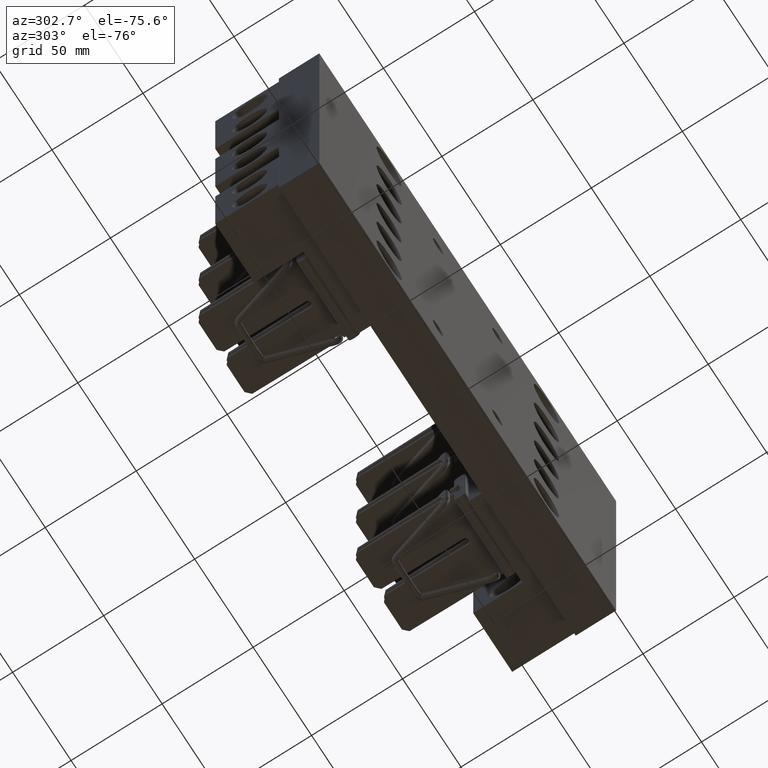
[diagram: clean part render]
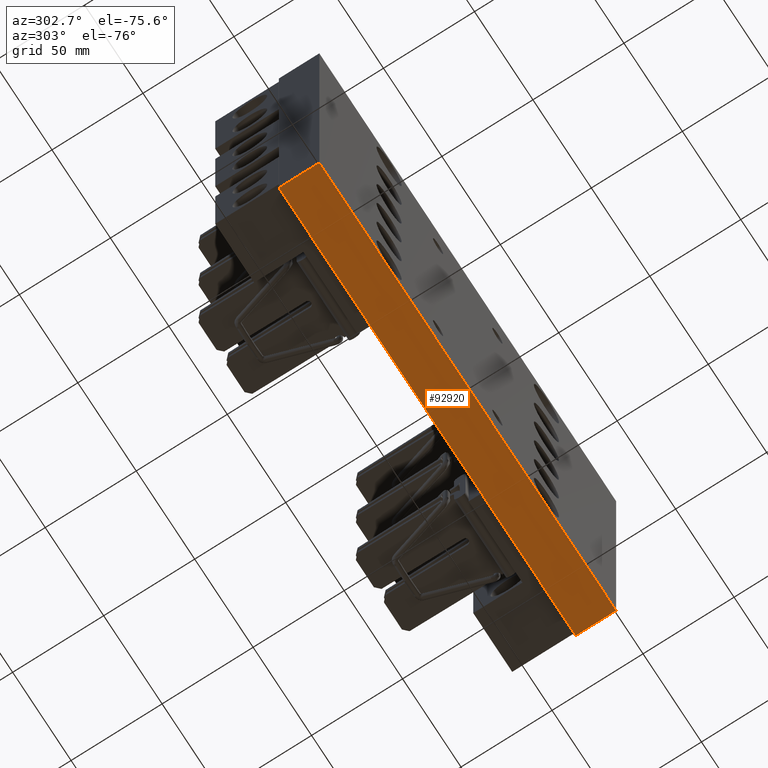
[diagram: same view with one face highlighted and labeled with its STEP entity id]
A machine part, auxiliary view. The second image highlights one B-rep face of the part: STEP entity #92920.
In plain terms, the highlighted planar face has unit normal (0, 0, 1).
Its self-contained STEP definition (entity closure, byte-faithful):
#7369 = EDGE_CURVE ( 'NONE', #13911, #13732, #9282, .T. ) ;
#7371 = EDGE_CURVE ( 'NONE', #13732, #13734, #9298, .T. ) ;
#7373 = EDGE_CURVE ( 'NONE', #13737, #13734, #9302, .T. ) ;
#7376 = EDGE_CURVE ( 'NONE', #13911, #13737, #9314, .T. ) ;
#9282 = LINE ( 'NONE', #54401, #9300 ) ;
#9298 = LINE ( 'NONE', #54416, #9304 ) ;
#9300 = VECTOR ( 'NONE', #54415, 39.37007874015748100 ) ;
#9302 = LINE ( 'NONE', #54418, #9308 ) ;
#9304 = VECTOR ( 'NONE', #54417, 39.37007874015748100 ) ;
#9308 = VECTOR ( 'NONE', #54420, 39.37007874015748100 ) ;
#9314 = LINE ( 'NONE', #54424, #9320 ) ;
#9320 = VECTOR ( 'NONE', #54426, 39.37007874015748100 ) ;
#11329 = CARTESIAN_POINT ( 'NONE',  ( -5.000000000000000000, 0.8750000000000000000, -4.000000000000000000 ) ) ;
#11331 = CARTESIAN_POINT ( 'NONE',  ( -5.000000000000000000, 0.0000000000000000000, -4.000000000000000000 ) ) ;
#11334 = CARTESIAN_POINT ( 'NONE',  ( 5.000000000000000000, 0.0000000000000000000, -4.000000000000000000 ) ) ;
#11508 = CARTESIAN_POINT ( 'NONE',  ( 5.000000000000000000, 0.8750000000000000000, -4.000000000000000000 ) ) ;
#13732 = VERTEX_POINT ( 'NONE', #11329 ) ;
#13734 = VERTEX_POINT ( 'NONE', #11331 ) ;
#13737 = VERTEX_POINT ( 'NONE', #11334 ) ;
#13911 = VERTEX_POINT ( 'NONE', #11508 ) ;
#54401 = CARTESIAN_POINT ( 'NONE',  ( -5.000000000000000000, 0.8750000000000000000, -4.000000000000000000 ) ) ;
#54415 = DIRECTION ( 'NONE',  ( -1.000000000000000000, -0.0000000000000000000, -0.0000000000000000000 ) ) ;
#54416 = CARTESIAN_POINT ( 'NONE',  ( -5.000000000000000000, 0.8750000000000000000, -4.000000000000000000 ) ) ;
#54417 = DIRECTION ( 'NONE',  ( -0.0000000000000000000, -1.000000000000000000, -0.0000000000000000000 ) ) ;
#54418 = CARTESIAN_POINT ( 'NONE',  ( -5.000000000000000000, 0.0000000000000000000, -4.000000000000000000 ) ) ;
#54420 = DIRECTION ( 'NONE',  ( -1.000000000000000000, -0.0000000000000000000, -0.0000000000000000000 ) ) ;
#54424 = CARTESIAN_POINT ( 'NONE',  ( 5.000000000000000000, 0.8750000000000000000, -4.000000000000000000 ) ) ;
#54426 = DIRECTION ( 'NONE',  ( -0.0000000000000000000, -1.000000000000000000, -0.0000000000000000000 ) ) ;
#61700 = ORIENTED_EDGE ( 'NONE', *, *, #7369, .F. ) ;
#61701 = ORIENTED_EDGE ( 'NONE', *, *, #7376, .T. ) ;
#61703 = ORIENTED_EDGE ( 'NONE', *, *, #7371, .F. ) ;
#61770 = ORIENTED_EDGE ( 'NONE', *, *, #7373, .T. ) ;
#82161 = EDGE_LOOP ( 'NONE', ( #61770, #61703, #61700, #61701 ) ) ;
#84983 = AXIS2_PLACEMENT_3D ( 'NONE', #88514, #88516, #88517 ) ;
#88501 = PLANE ( 'NONE',  #84983 ) ;
#88514 = CARTESIAN_POINT ( 'NONE',  ( -5.000000000000000000, 0.8750000000000000000, -4.000000000000000000 ) ) ;
#88516 = DIRECTION ( 'NONE',  ( 0.0000000000000000000, 0.0000000000000000000, 1.000000000000000000 ) ) ;
#88517 = DIRECTION ( 'NONE',  ( 1.000000000000000000, 0.0000000000000000000, -0.0000000000000000000 ) ) ;
#92920 = ADVANCED_FACE ( 'NONE', ( #93839 ), #88501, .F. ) ;
#93839 = FACE_OUTER_BOUND ( 'NONE', #82161, .T. ) ;